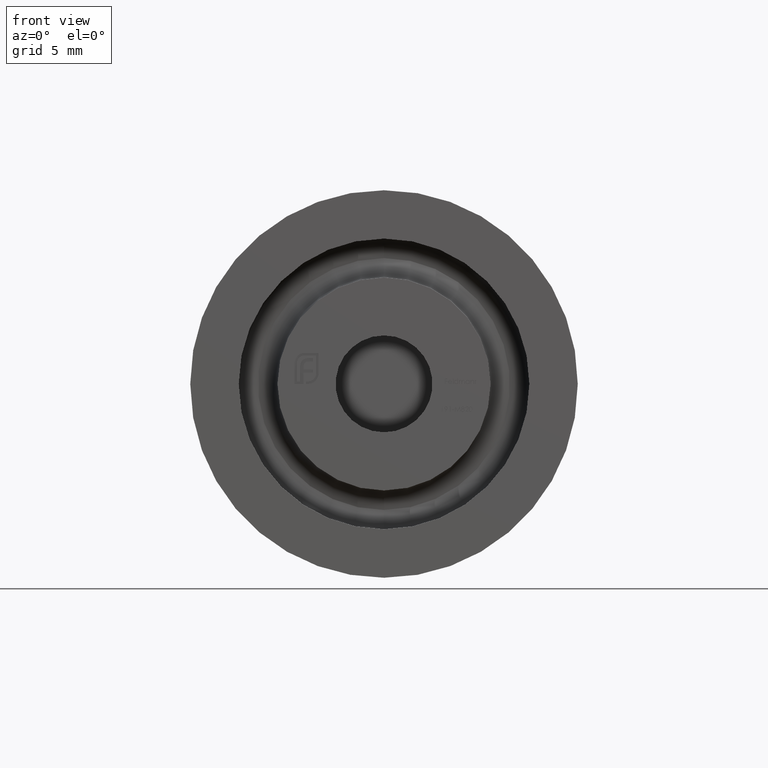
[diagram: clean part render]
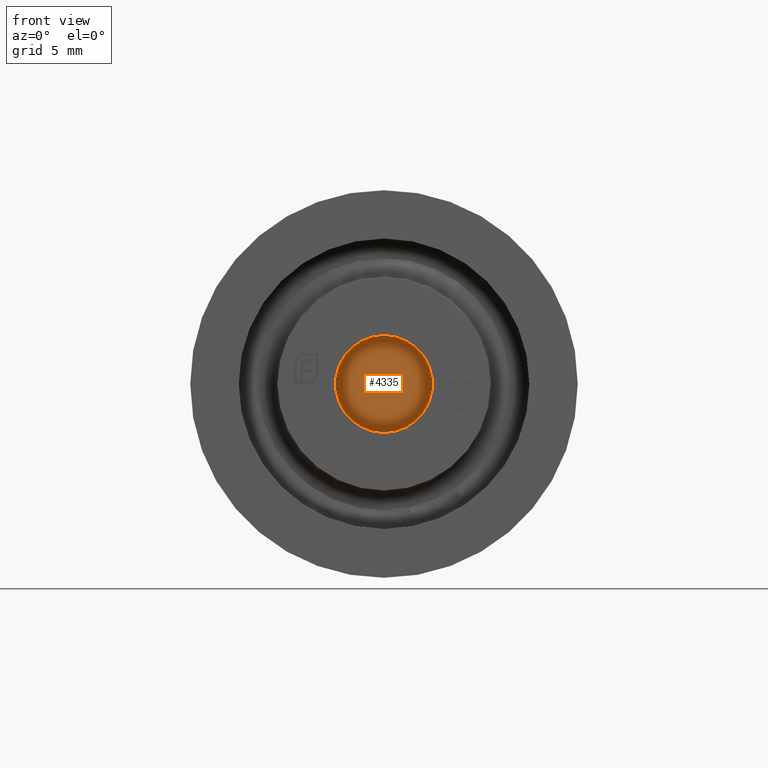
[diagram: same view with one face highlighted and labeled with its STEP entity id]
A machine part, front view. The second image highlights one B-rep face of the part: STEP entity #4335.
In plain terms, the highlighted planar face has unit normal (0, -1, 0).
Its self-contained STEP definition (entity closure, byte-faithful):
#378 = DIRECTION ( 'NONE',  ( 0.000000000000000000, 0.000000000000000000, -1.000000000000000000 ) ) ;
#849 = DIRECTION ( 'NONE',  ( -0.000000000000000000, 1.000000000000000000, -0.000000000000000000 ) ) ;
#1841 = AXIS2_PLACEMENT_3D ( 'NONE', #4526, #14235, #3484 ) ;
#2463 = EDGE_LOOP ( 'NONE', ( #5566, #2650 ) ) ;
#2650 = ORIENTED_EDGE ( 'NONE', *, *, #15254, .F. ) ;
#3327 = DIRECTION ( 'NONE',  ( 0.000000000000000000, 0.000000000000000000, -1.000000000000000000 ) ) ;
#3484 = DIRECTION ( 'NONE',  ( 0.000000000000000000, -0.000000000000000000, -1.000000000000000000 ) ) ;
#4335 = ADVANCED_FACE ( 'NONE', ( #7864 ), #10453, .T. ) ;
#4405 = CARTESIAN_POINT ( 'NONE',  ( 0.000000000000000000, 2.999999999999999112, 0.000000000000000000 ) ) ;
#4526 = CARTESIAN_POINT ( 'NONE',  ( 0.000000000000000000, 3.000000000000000000, 0.000000000000000000 ) ) ;
#4838 = CIRCLE ( 'NONE', #7605, 2.500000000000000000 ) ;
#5566 = ORIENTED_EDGE ( 'NONE', *, *, #13956, .F. ) ;
#6372 = DIRECTION ( 'NONE',  ( -0.000000000000000000, 1.000000000000000000, -0.000000000000000000 ) ) ;
#6426 = CARTESIAN_POINT ( 'NONE',  ( 0.000000000000000000, 2.999999999999999112, 2.500000000000000000 ) ) ;
#7494 = AXIS2_PLACEMENT_3D ( 'NONE', #8666, #6372, #378 ) ;
#7605 = AXIS2_PLACEMENT_3D ( 'NONE', #4405, #849, #3327 ) ;
#7804 = VERTEX_POINT ( 'NONE', #13222 ) ;
#7864 = FACE_OUTER_BOUND ( 'NONE', #2463, .T. ) ;
#8666 = CARTESIAN_POINT ( 'NONE',  ( 0.000000000000000000, 2.999999999999999112, 0.000000000000000000 ) ) ;
#10453 = PLANE ( 'NONE',  #1841 ) ;
#13222 = CARTESIAN_POINT ( 'NONE',  ( 3.061616997868383141E-16, 2.999999999999999112, -2.500000000000000000 ) ) ;
#13951 = VERTEX_POINT ( 'NONE', #6426 ) ;
#13956 = EDGE_CURVE ( 'NONE', #13951, #7804, #15589, .T. ) ;
#14235 = DIRECTION ( 'NONE',  ( 0.000000000000000000, -1.000000000000000000, 0.000000000000000000 ) ) ;
#15254 = EDGE_CURVE ( 'NONE', #7804, #13951, #4838, .T. ) ;
#15589 = CIRCLE ( 'NONE', #7494, 2.500000000000000000 ) ;